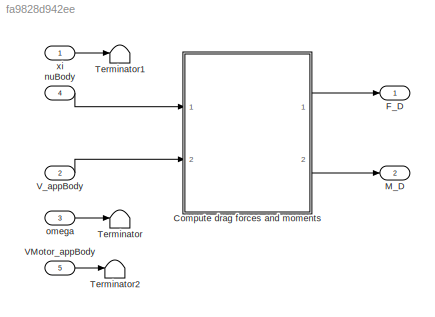
MODEL slx_fa9828d942ee
KIND model
CONFIG AbsTol = auto
CONFIG EnableMultiTasking = on
CONFIG FixedStep = auto
CONFIG MaxStep = auto
CONFIG MinStep = auto
CONFIG RelTol = 1e-3
CONFIG SampleTimeConstraint = Unconstrained
CONFIG SolverName = VariableStepAuto
CONFIG StartTime = 0.0
CONFIG StopTime = 10.0
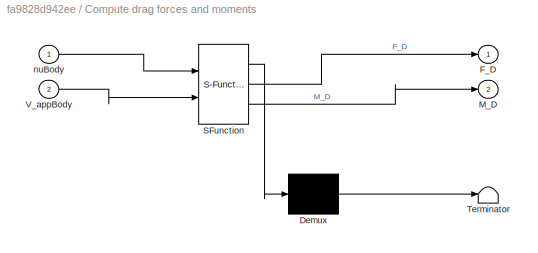
BLOCK [SubSystem] Compute drag forces and moments
  ErrorFcn = Stateflow.Translate.translate
  PermitHierarchicalResolution = ExplicitOnly
  Ports = [2, 2]
  RequestExecContextInheritance = off
  SFBlockType = MATLAB Function
  TreatAsAtomicUnit = on
BLOCK [Demux] Compute drag forces and moments/ Demux 
  Outputs = 1
  Ports = [1, 1]
BLOCK [S-Function] Compute drag forces and moments/ SFunction 
  EnableBusSupport = on
  FunctionName = sf_sfun
  Parameters = Uav
  PortCounts = [2 3]
  Ports = [2, 3]
  SFcnIsStateOwnerBlock = off
  SFunctionDeploymentMode = off
  Tag = Stateflow S-Function 2
BLOCK [Terminator] Compute drag forces and moments/ Terminator 
BLOCK [Outport] Compute drag forces and moments/F_D
  VectorParamsAs1DForOutWhenUnconnected = off
BLOCK [Outport] Compute drag forces and moments/M_D
  Port = 2
  VectorParamsAs1DForOutWhenUnconnected = off
BLOCK [Inport] Compute drag forces and moments/V_appBody
  Port = 2
BLOCK [Inport] Compute drag forces and moments/nuBody
BLOCK [Outport] F_D
  VectorParamsAs1DForOutWhenUnconnected = off
BLOCK [Outport] M_D
  Port = 2
  VectorParamsAs1DForOutWhenUnconnected = off
BLOCK [Terminator] Terminator
BLOCK [Terminator] Terminator1
BLOCK [Terminator] Terminator2
BLOCK [Inport] VMotor_appBody
  Port = 5
  PortDimensions = [3,4]
BLOCK [Inport] V_appBody
  Port = 2
  PortDimensions = 3
BLOCK [Inport] nuBody
  Port = 4
  PortDimensions = 3
BLOCK [Inport] omega
  Port = 3
  PortDimensions = Uav.N_ROTORS
BLOCK [Inport] xi
  PortDimensions = 3
LINE Compute drag forces and moments:1 -> F_D:1
LINE Compute drag forces and moments:2 -> M_D:1
LINE VMotor_appBody:1 -> Terminator2:1
LINE V_appBody:1 -> Compute drag forces and moments:2
LINE nuBody:1 -> Compute drag forces and moments:1
LINE omega:1 -> Terminator:1
LINE xi:1 -> Terminator1:1
CHART Compute drag forces and moments states=1 transitions=1
  STATE_LABEL 'eML_blk_kernel()'
  STATE_LABEL 'SCRIPT:\nfunction [F_D, M_D] = computeDrag(nuBody, V_appBody, Uav)\n%#codegen\n\n% Calculate drag force\nF_D = 0.5 * Uav.RHO_AIR * Uav.C_D * (norm(V_appBody) .* V_appBody);\n\n% Drag moment, applied to independent axes\nM_D = 0.5 * Uav.RHO_AIR * Uav.C_DM * (norm(nuBody) .* nuBody);'
CHART  states=0 transitions=0
